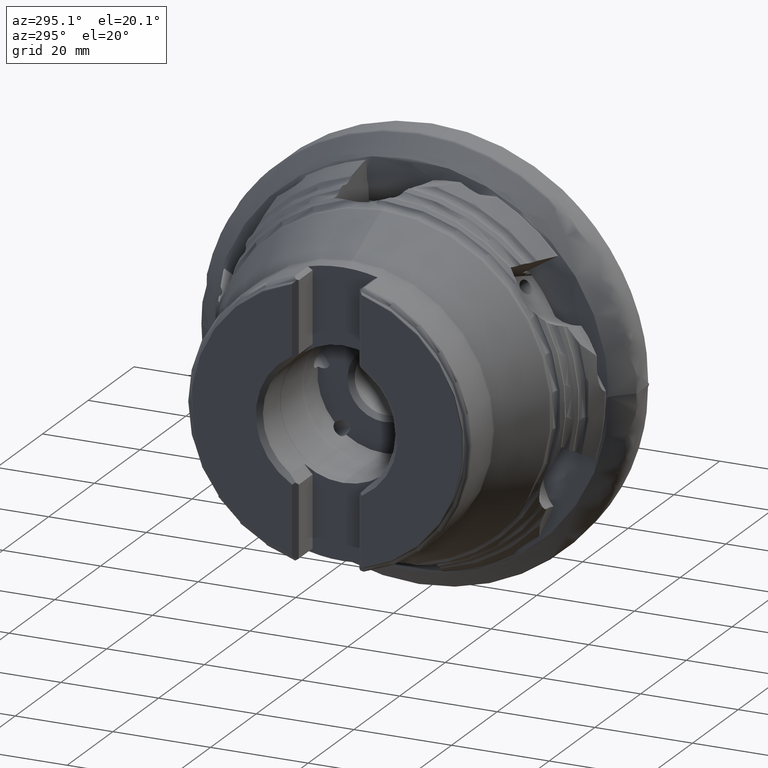
[diagram: clean part render]
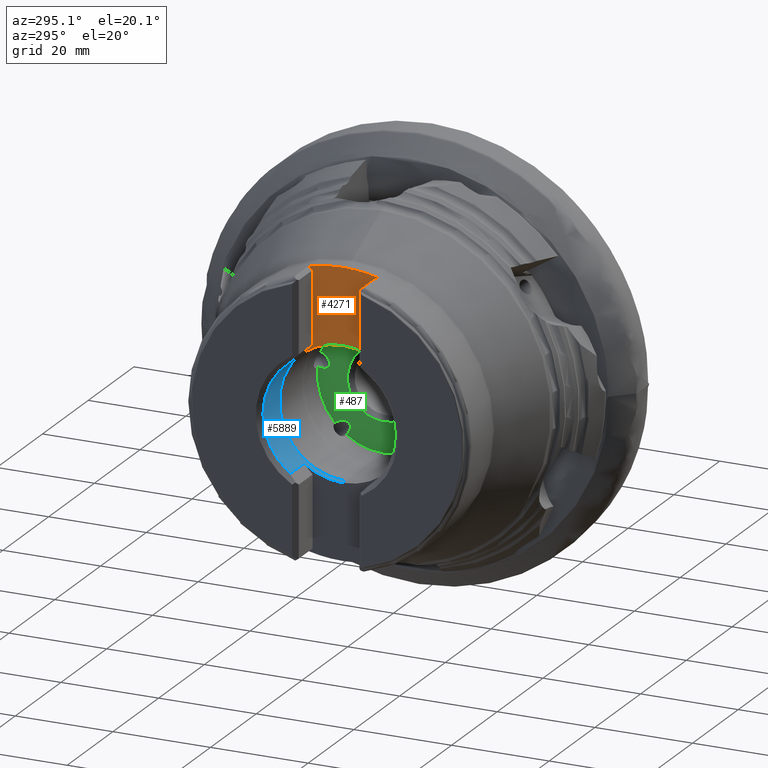
[diagram: same view with three faces highlighted in distinct colors, each labeled with its STEP entity id]
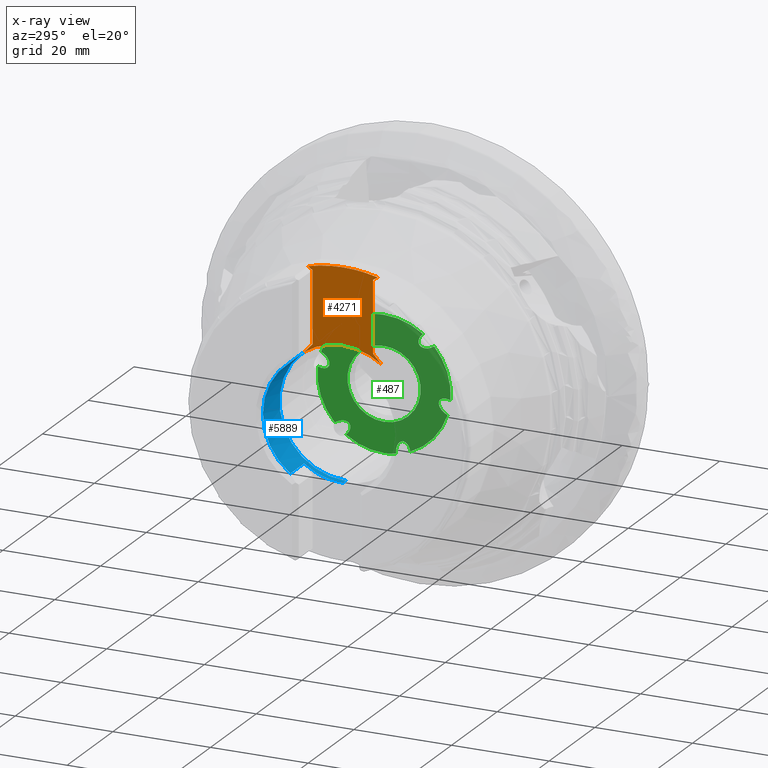
[diagram: x-ray of the same camera — body ghosted, the three highlighted faces saturated]
A machine part, auxiliary view with three faces highlighted in distinct colors.
The next image is the same camera in x-ray (body ghosted, the three faces saturated) — at least one of them is partly hidden behind the body in this view.
Their STEP definitions:

[orange] entity #4271 — the highlighted planar face has unit normal (1, 0, 0).
#84 = EDGE_LOOP ( 'NONE', ( #4089, #8504, #4927, #7433, #7817, #8370, #4221, #6558, #6482, #9602 ) ) ;
#178 = VERTEX_POINT ( 'NONE', #295 ) ;
#234 = CARTESIAN_POINT ( 'NONE',  ( -42.10399999999997800, -40.36027029804522900, -2.350228616249033600 ) ) ;
#295 = CARTESIAN_POINT ( 'NONE',  ( -42.10399999999997800, -6.200000000000003700, 12.87078501993768700 ) ) ;
#298 = FACE_OUTER_BOUND ( 'NONE', #84, .T. ) ;
#473 = LINE ( 'NONE', #7339, #3367 ) ;
#575 = EDGE_CURVE ( 'NONE', #178, #7836, #1746, .T. ) ;
#695 = AXIS2_PLACEMENT_3D ( 'NONE', #10191, #7041, #8636 ) ;
#716 = CARTESIAN_POINT ( 'NONE',  ( -42.10399999999997800, -6.200000000000003700, 27.48962812295473100 ) ) ;
#779 = LINE ( 'NONE', #9442, #2661 ) ;
#899 = VERTEX_POINT ( 'NONE', #8740 ) ;
#939 = VERTEX_POINT ( 'NONE', #2297 ) ;
#994 = LINE ( 'NONE', #234, #9202 ) ;
#1006 = CARTESIAN_POINT ( 'NONE',  ( -42.10399999999997800, 0.0000000000000000000, 0.0000000000000000000 ) ) ;
#1055 = CARTESIAN_POINT ( 'NONE',  ( -42.10399999999997800, 7.956204235286507200, 10.99906537694948300 ) ) ;
#1134 = DIRECTION ( 'NONE',  ( -1.000000000000000000, -0.0000000000000000000, -0.0000000000000000000 ) ) ;
#1240 = EDGE_CURVE ( 'NONE', #899, #2574, #994, .T. ) ;
#1278 = EDGE_CURVE ( 'NONE', #1807, #6583, #9572, .T. ) ;
#1745 = VERTEX_POINT ( 'NONE', #5588 ) ;
#1746 = LINE ( 'NONE', #5830, #5987 ) ;
#1796 = CARTESIAN_POINT ( 'NONE',  ( -42.10399999999997800, -7.956204235286496600, 10.99906537694949200 ) ) ;
#1807 = VERTEX_POINT ( 'NONE', #1796 ) ;
#1859 = VERTEX_POINT ( 'NONE', #1055 ) ;
#1876 = DIRECTION ( 'NONE',  ( 0.0000000000000000000, 0.0000000000000000000, -1.000000000000000000 ) ) ;
#2297 = CARTESIAN_POINT ( 'NONE',  ( -42.10399999999997800, 6.199999999999994000, 12.87078501993769900 ) ) ;
#2532 = LINE ( 'NONE', #9220, #8268 ) ;
#2574 = VERTEX_POINT ( 'NONE', #9864 ) ;
#2661 = VECTOR ( 'NONE', #6241, 1000.000000000000000 ) ;
#2841 = EDGE_CURVE ( 'NONE', #939, #1859, #779, .T. ) ;
#2990 = AXIS2_PLACEMENT_3D ( 'NONE', #4185, #8959, #9727 ) ;
#3367 = VECTOR ( 'NONE', #8339, 1000.000000000000000 ) ;
#3447 = AXIS2_PLACEMENT_3D ( 'NONE', #4599, #7659, #8498 ) ;
#3911 = DIRECTION ( 'NONE',  ( -1.000000000000000000, -0.0000000000000000000, -0.0000000000000000000 ) ) ;
#3972 = DIRECTION ( 'NONE',  ( 0.0000000000000000000, 0.0000000000000000000, -1.000000000000000000 ) ) ;
#4089 = ORIENTED_EDGE ( 'NONE', *, *, #6974, .T. ) ;
#4185 = CARTESIAN_POINT ( 'NONE',  ( -42.10399999999997800, 6.199999999999994000, -75.00000000000000000 ) ) ;
#4221 = ORIENTED_EDGE ( 'NONE', *, *, #1278, .F. ) ;
#4271 = ADVANCED_FACE ( 'NONE', ( #298 ), #6614, .F. ) ;
#4599 = CARTESIAN_POINT ( 'NONE',  ( -42.10399999999997800, 0.0000000000000000000, 0.0000000000000000000 ) ) ;
#4655 = CARTESIAN_POINT ( 'NONE',  ( -42.10399999999997800, 0.0000000000000000000, 0.0000000000000000000 ) ) ;
#4834 = EDGE_CURVE ( 'NONE', #7836, #1745, #2532, .T. ) ;
#4927 = ORIENTED_EDGE ( 'NONE', *, *, #1240, .T. ) ;
#4956 = EDGE_CURVE ( 'NONE', #5078, #899, #8382, .T. ) ;
#4959 = CARTESIAN_POINT ( 'NONE',  ( -42.10399999999997800, -44.24082105716617300, -27.67219430870600800 ) ) ;
#5078 = VERTEX_POINT ( 'NONE', #6384 ) ;
#5177 = AXIS2_PLACEMENT_3D ( 'NONE', #4655, #3911, #3972 ) ;
#5588 = CARTESIAN_POINT ( 'NONE',  ( -42.10399999999997800, -7.157023391835934900, 28.10297166081753100 ) ) ;
#5830 = CARTESIAN_POINT ( 'NONE',  ( -42.10399999999997800, -6.200000000000003700, -75.00000000000000000 ) ) ;
#5987 = VECTOR ( 'NONE', #8161, 1000.000000000000000 ) ;
#6241 = DIRECTION ( 'NONE',  ( 0.0000000000000000000, 0.6842452857409364600, -0.7292519379071298300 ) ) ;
#6243 = CIRCLE ( 'NONE', #695, 13.57499999999999400 ) ;
#6384 = CARTESIAN_POINT ( 'NONE',  ( -42.10399999999997800, 3.551475717527324000E-015, 28.99999999999999600 ) ) ;
#6482 = ORIENTED_EDGE ( 'NONE', *, *, #575, .T. ) ;
#6558 = ORIENTED_EDGE ( 'NONE', *, *, #9048, .T. ) ;
#6583 = VERTEX_POINT ( 'NONE', #10068 ) ;
#6614 = PLANE ( 'NONE',  #2990 ) ;
#6974 = EDGE_CURVE ( 'NONE', #1745, #5078, #9729, .T. ) ;
#7041 = DIRECTION ( 'NONE',  ( -1.000000000000000000, -0.0000000000000000000, -0.0000000000000000000 ) ) ;
#7283 = DIRECTION ( 'NONE',  ( -0.0000000000000000000, 0.6842452857409375700, 0.7292519379071286100 ) ) ;
#7339 = CARTESIAN_POINT ( 'NONE',  ( -42.10399999999997800, 6.199999999999994000, -75.00000000000000000 ) ) ;
#7433 = ORIENTED_EDGE ( 'NONE', *, *, #9865, .F. ) ;
#7650 = DIRECTION ( 'NONE',  ( -0.0000000000000000000, -0.8419322925598232700, 0.5395831861214359600 ) ) ;
#7659 = DIRECTION ( 'NONE',  ( -1.000000000000000000, -0.0000000000000000000, -0.0000000000000000000 ) ) ;
#7817 = ORIENTED_EDGE ( 'NONE', *, *, #2841, .T. ) ;
#7836 = VERTEX_POINT ( 'NONE', #716 ) ;
#7966 = VECTOR ( 'NONE', #7283, 1000.000000000000100 ) ;
#8161 = DIRECTION ( 'NONE',  ( -0.0000000000000000000, -0.0000000000000000000, 1.000000000000000000 ) ) ;
#8268 = VECTOR ( 'NONE', #7650, 999.9999999999998900 ) ;
#8339 = DIRECTION ( 'NONE',  ( -0.0000000000000000000, -0.0000000000000000000, 1.000000000000000000 ) ) ;
#8370 = ORIENTED_EDGE ( 'NONE', *, *, #8401, .F. ) ;
#8382 = CIRCLE ( 'NONE', #5177, 28.99999999999999600 ) ;
#8401 = EDGE_CURVE ( 'NONE', #6583, #1859, #6243, .T. ) ;
#8498 = DIRECTION ( 'NONE',  ( 0.0000000000000000000, 5.329070518200752200E-015, -1.000000000000000000 ) ) ;
#8504 = ORIENTED_EDGE ( 'NONE', *, *, #4956, .T. ) ;
#8636 = DIRECTION ( 'NONE',  ( 0.0000000000000000000, 0.0000000000000000000, -1.000000000000000000 ) ) ;
#8740 = CARTESIAN_POINT ( 'NONE',  ( -42.10399999999997800, 7.157023391835952700, 28.10297166081752400 ) ) ;
#8959 = DIRECTION ( 'NONE',  ( 1.000000000000000000, 0.0000000000000000000, 0.0000000000000000000 ) ) ;
#8964 = DIRECTION ( 'NONE',  ( 0.0000000000000000000, -0.8419322925598232700, -0.5395831861214359600 ) ) ;
#9048 = EDGE_CURVE ( 'NONE', #1807, #178, #9455, .T. ) ;
#9202 = VECTOR ( 'NONE', #8964, 1000.000000000000000 ) ;
#9220 = CARTESIAN_POINT ( 'NONE',  ( -42.10399999999997800, 49.15001011520772800, -7.983455726831651100 ) ) ;
#9343 = AXIS2_PLACEMENT_3D ( 'NONE', #1006, #1134, #1876 ) ;
#9442 = CARTESIAN_POINT ( 'NONE',  ( -42.10399999999997800, 50.04639703429401700, -33.85963559652304900 ) ) ;
#9455 = LINE ( 'NONE', #4959, #7966 ) ;
#9572 = CIRCLE ( 'NONE', #9343, 13.57499999999999400 ) ;
#9602 = ORIENTED_EDGE ( 'NONE', *, *, #4834, .T. ) ;
#9727 = DIRECTION ( 'NONE',  ( 0.0000000000000000000, 0.0000000000000000000, -1.000000000000000000 ) ) ;
#9729 = CIRCLE ( 'NONE', #3447, 28.99999999999999600 ) ;
#9864 = CARTESIAN_POINT ( 'NONE',  ( -42.10399999999997800, 6.199999999999994000, 27.48962812295470600 ) ) ;
#9865 = EDGE_CURVE ( 'NONE', #939, #2574, #473, .T. ) ;
#10068 = CARTESIAN_POINT ( 'NONE',  ( -42.10399999999997800, 1.662458029842531100E-015, 13.57499999999999400 ) ) ;
#10191 = CARTESIAN_POINT ( 'NONE',  ( -42.10399999999997800, 0.0000000000000000000, 0.0000000000000000000 ) ) ;

[blue] entity #5889 — the highlighted cylindrical surface (partial cylindrical patch) has radius 13.575 mm, axis along (1, -0, -0).
#23 = AXIS2_PLACEMENT_3D ( 'NONE', #7435, #9809, #1917 ) ;
#251 = LINE ( 'NONE', #9643, #9331 ) ;
#306 = DIRECTION ( 'NONE',  ( 1.000000000000000000, -0.0000000000000000000, -0.0000000000000000000 ) ) ;
#311 = ORIENTED_EDGE ( 'NONE', *, *, #4662, .F. ) ;
#495 = EDGE_LOOP ( 'NONE', ( #311, #10109, #7279, #1343, #3578, #3525, #1643, #9600 ) ) ;
#584 = DIRECTION ( 'NONE',  ( 0.0000000000000000000, 0.0000000000000000000, -1.000000000000000000 ) ) ;
#695 = AXIS2_PLACEMENT_3D ( 'NONE', #10191, #7041, #8636 ) ;
#1055 = CARTESIAN_POINT ( 'NONE',  ( -42.10399999999997800, 7.956204235286507200, 10.99906537694948300 ) ) ;
#1343 = ORIENTED_EDGE ( 'NONE', *, *, #7898, .F. ) ;
#1643 = ORIENTED_EDGE ( 'NONE', *, *, #5144, .T. ) ;
#1757 = DIRECTION ( 'NONE',  ( -1.000000000000000000, 0.0000000000000000000, 0.0000000000000000000 ) ) ;
#1859 = VERTEX_POINT ( 'NONE', #1055 ) ;
#1917 = DIRECTION ( 'NONE',  ( 0.0000000000000000000, 0.0000000000000000000, -1.000000000000000000 ) ) ;
#1941 = VERTEX_POINT ( 'NONE', #8384 ) ;
#2014 = VERTEX_POINT ( 'NONE', #4494 ) ;
#2160 = CIRCLE ( 'NONE', #7240, 13.57499999999999600 ) ;
#2270 = VECTOR ( 'NONE', #306, 1000.000000000000000 ) ;
#2491 = CARTESIAN_POINT ( 'NONE',  ( -48.10399999999999900, 0.0000000000000000000, 0.0000000000000000000 ) ) ;
#2559 = DIRECTION ( 'NONE',  ( 1.000000000000000000, -0.0000000000000000000, -0.0000000000000000000 ) ) ;
#2658 = DIRECTION ( 'NONE',  ( 1.000000000000000000, -0.0000000000000000000, -0.0000000000000000000 ) ) ;
#2737 = CARTESIAN_POINT ( 'NONE',  ( -42.10399999999997800, 7.956204235286507200, -10.99906537694948300 ) ) ;
#2780 = LINE ( 'NONE', #3234, #5771 ) ;
#3234 = CARTESIAN_POINT ( 'NONE',  ( 0.0000000000000000000, 7.956204235286507200, -10.99906537694948300 ) ) ;
#3289 = CYLINDRICAL_SURFACE ( 'NONE', #23, 13.57499999999999400 ) ;
#3475 = EDGE_CURVE ( 'NONE', #5726, #8058, #2780, .T. ) ;
#3525 = ORIENTED_EDGE ( 'NONE', *, *, #10047, .T. ) ;
#3540 = LINE ( 'NONE', #4255, #2270 ) ;
#3578 = ORIENTED_EDGE ( 'NONE', *, *, #3475, .T. ) ;
#4245 = CARTESIAN_POINT ( 'NONE',  ( -40.85399999999999900, 1.662458029842531500E-015, 13.57499999999999800 ) ) ;
#4255 = CARTESIAN_POINT ( 'NONE',  ( 0.0000000000000000000, 0.0000000000000000000, -13.57499999999999400 ) ) ;
#4292 = LINE ( 'NONE', #9849, #7881 ) ;
#4374 = CIRCLE ( 'NONE', #6061, 13.57499999999999400 ) ;
#4494 = CARTESIAN_POINT ( 'NONE',  ( -48.10399999999999900, 7.956204235286510800, 10.99906537694948300 ) ) ;
#4509 = VERTEX_POINT ( 'NONE', #4671 ) ;
#4662 = EDGE_CURVE ( 'NONE', #6583, #7949, #4292, .T. ) ;
#4671 = CARTESIAN_POINT ( 'NONE',  ( -42.10399999999997800, 0.0000000000000000000, -13.57499999999999400 ) ) ;
#4709 = DIRECTION ( 'NONE',  ( 1.000000000000000000, -0.0000000000000000000, -0.0000000000000000000 ) ) ;
#4875 = EDGE_CURVE ( 'NONE', #1941, #7949, #2160, .T. ) ;
#5144 = EDGE_CURVE ( 'NONE', #4509, #1941, #3540, .T. ) ;
#5223 = CIRCLE ( 'NONE', #5964, 13.57499999999999400 ) ;
#5306 = CARTESIAN_POINT ( 'NONE',  ( -40.85399999999999900, 0.0000000000000000000, 0.0000000000000000000 ) ) ;
#5334 = DIRECTION ( 'NONE',  ( 1.000000000000000000, -0.0000000000000000000, -0.0000000000000000000 ) ) ;
#5358 = DIRECTION ( 'NONE',  ( -1.000000000000000000, -0.0000000000000000000, -0.0000000000000000000 ) ) ;
#5615 = CARTESIAN_POINT ( 'NONE',  ( -48.10399999999999900, 7.956204235286510800, -10.99906537694948300 ) ) ;
#5726 = VERTEX_POINT ( 'NONE', #5615 ) ;
#5771 = VECTOR ( 'NONE', #4709, 1000.000000000000000 ) ;
#5889 = ADVANCED_FACE ( 'NONE', ( #9614 ), #3289, .F. ) ;
#5964 = AXIS2_PLACEMENT_3D ( 'NONE', #8508, #5358, #6102 ) ;
#6061 = AXIS2_PLACEMENT_3D ( 'NONE', #2491, #2559, #7299 ) ;
#6102 = DIRECTION ( 'NONE',  ( 0.0000000000000000000, 0.0000000000000000000, -1.000000000000000000 ) ) ;
#6243 = CIRCLE ( 'NONE', #695, 13.57499999999999400 ) ;
#6583 = VERTEX_POINT ( 'NONE', #10068 ) ;
#7041 = DIRECTION ( 'NONE',  ( -1.000000000000000000, -0.0000000000000000000, -0.0000000000000000000 ) ) ;
#7240 = AXIS2_PLACEMENT_3D ( 'NONE', #5306, #5334, #584 ) ;
#7279 = ORIENTED_EDGE ( 'NONE', *, *, #9028, .T. ) ;
#7299 = DIRECTION ( 'NONE',  ( 0.0000000000000000000, 0.0000000000000000000, -1.000000000000000000 ) ) ;
#7435 = CARTESIAN_POINT ( 'NONE',  ( 0.0000000000000000000, 0.0000000000000000000, 0.0000000000000000000 ) ) ;
#7881 = VECTOR ( 'NONE', #2658, 1000.000000000000000 ) ;
#7898 = EDGE_CURVE ( 'NONE', #5726, #2014, #4374, .T. ) ;
#7949 = VERTEX_POINT ( 'NONE', #4245 ) ;
#8058 = VERTEX_POINT ( 'NONE', #2737 ) ;
#8384 = CARTESIAN_POINT ( 'NONE',  ( -40.85399999999999900, 0.0000000000000000000, -13.57499999999999600 ) ) ;
#8401 = EDGE_CURVE ( 'NONE', #6583, #1859, #6243, .T. ) ;
#8508 = CARTESIAN_POINT ( 'NONE',  ( -42.10399999999997800, 0.0000000000000000000, 0.0000000000000000000 ) ) ;
#8636 = DIRECTION ( 'NONE',  ( 0.0000000000000000000, 0.0000000000000000000, -1.000000000000000000 ) ) ;
#9028 = EDGE_CURVE ( 'NONE', #1859, #2014, #251, .T. ) ;
#9331 = VECTOR ( 'NONE', #1757, 1000.000000000000000 ) ;
#9600 = ORIENTED_EDGE ( 'NONE', *, *, #4875, .T. ) ;
#9614 = FACE_OUTER_BOUND ( 'NONE', #495, .T. ) ;
#9643 = CARTESIAN_POINT ( 'NONE',  ( 0.0000000000000000000, 7.956204235286507200, 10.99906537694948300 ) ) ;
#9809 = DIRECTION ( 'NONE',  ( 1.000000000000000000, -0.0000000000000000000, -0.0000000000000000000 ) ) ;
#9849 = CARTESIAN_POINT ( 'NONE',  ( 0.0000000000000000000, 1.662458029842531100E-015, 13.57499999999999400 ) ) ;
#10047 = EDGE_CURVE ( 'NONE', #8058, #4509, #5223, .T. ) ;
#10068 = CARTESIAN_POINT ( 'NONE',  ( -42.10399999999997800, 1.662458029842531100E-015, 13.57499999999999400 ) ) ;
#10109 = ORIENTED_EDGE ( 'NONE', *, *, #8401, .T. ) ;
#10191 = CARTESIAN_POINT ( 'NONE',  ( -42.10399999999997800, 0.0000000000000000000, 0.0000000000000000000 ) ) ;

[green] entity #487 — the highlighted planar face has unit normal (1, 0, -0).
#1 = EDGE_LOOP ( 'NONE', ( #3028, #1092, #4732, #7751, #6745, #8785, #4493, #6380, #9123, #626, #4931, #5373, #2582, #2520, #8291, #8324, #750, #1772, #8228, #734 ) ) ;
#129 = PLANE ( 'NONE',  #5501 ) ;
#239 = CIRCLE ( 'NONE', #6101, 7.499999999999992000 ) ;
#266 = VERTEX_POINT ( 'NONE', #9193 ) ;
#278 = CIRCLE ( 'NONE', #7953, 13.64999999999999900 ) ;
#324 = CARTESIAN_POINT ( 'NONE',  ( -24.10399999999999900, -13.60216233544888100, -1.141787983863743900 ) ) ;
#368 = CARTESIAN_POINT ( 'NONE',  ( -24.10399999999999900, 0.0000000000000000000, 0.0000000000000000000 ) ) ;
#480 =( BOUNDED_CURVE ( )  B_SPLINE_CURVE ( 3, ( #6475, #5598, #5637, #1672 ),
 .UNSPECIFIED., .F., .F. ) 
 B_SPLINE_CURVE_WITH_KNOTS ( ( 4, 4 ),
 ( 1.417982092244132600, 2.812262830836688800 ),
 .UNSPECIFIED. ) 
 CURVE ( )  GEOMETRIC_REPRESENTATION_ITEM ( )  RATIONAL_B_SPLINE_CURVE ( ( 1.000000000000000000, 0.8444541881402121100, 0.8444541881402121100, 1.000000000000000000 ) ) 
 REPRESENTATION_ITEM ( '' )  );
#481 = CARTESIAN_POINT ( 'NONE',  ( -24.10399999999999900, -10.25897577499131700, 9.004216570481904800 ) ) ;
#487 = ADVANCED_FACE ( 'NONE', ( #4992, #876 ), #129, .F. ) ;
#519 = EDGE_CURVE ( 'NONE', #3093, #8397, #7224, .T. ) ;
#579 = CARTESIAN_POINT ( 'NONE',  ( -24.10399999999999900, 10.10026803605284800, -9.181888999540834800 ) ) ;
#598 = EDGE_CURVE ( 'NONE', #9731, #4681, #9894, .T. ) ;
#626 = ORIENTED_EDGE ( 'NONE', *, *, #8077, .T. ) ;
#726 = EDGE_CURVE ( 'NONE', #3131, #6177, #2500, .T. ) ;
#732 = CARTESIAN_POINT ( 'NONE',  ( -24.10399999999999900, 0.0000000000000000000, 0.0000000000000000000 ) ) ;
#734 = ORIENTED_EDGE ( 'NONE', *, *, #10192, .T. ) ;
#750 = ORIENTED_EDGE ( 'NONE', *, *, #2879, .T. ) ;
#876 = FACE_BOUND ( 'NONE', #8176, .T. ) ;
#991 = CARTESIAN_POINT ( 'NONE',  ( -24.10399999999999900, -13.00188314635763300, -4.156144204483425100 ) ) ;
#995 = CARTESIAN_POINT ( 'NONE',  ( -24.10399999999999900, 6.880747922539177000, -9.577514490748388500 ) ) ;
#1064 = VERTEX_POINT ( 'NONE', #8196 ) ;
#1092 = ORIENTED_EDGE ( 'NONE', *, *, #7708, .T. ) ;
#1118 = CARTESIAN_POINT ( 'NONE',  ( -24.10399999999999600, -2.283794969497794800, -11.91032887079682800 ) ) ;
#1239 = DIRECTION ( 'NONE',  ( 1.000000000000000000, -0.0000000000000000000, -0.0000000000000000000 ) ) ;
#1293 = CARTESIAN_POINT ( 'NONE',  ( -24.10399999999999900, -8.651283427815688000, 7.807895116188567500 ) ) ;
#1311 = CARTESIAN_POINT ( 'NONE',  ( -24.10399999999999900, 1.671642880836136900E-015, 13.64999999999999900 ) ) ;
#1363 = VERTEX_POINT ( 'NONE', #9095 ) ;
#1418 = EDGE_CURVE ( 'NONE', #6177, #8660, #7921, .T. ) ;
#1427 = VERTEX_POINT ( 'NONE', #1311 ) ;
#1672 = CARTESIAN_POINT ( 'NONE',  ( -24.10399999999999900, -11.20679278877424800, -2.072044995719736000 ) ) ;
#1675 = CARTESIAN_POINT ( 'NONE',  ( -24.10399999999999900, 0.0000000000000000000, 0.0000000000000000000 ) ) ;
#1728 = CARTESIAN_POINT ( 'NONE',  ( -24.10399999999999900, 3.133953956819699900, 13.28536159073338000 ) ) ;
#1772 = ORIENTED_EDGE ( 'NONE', *, *, #4789, .F. ) ;
#1800 = CARTESIAN_POINT ( 'NONE',  ( -24.10399999999999900, -5.377689456982778900, -12.54603348091563600 ) ) ;
#1861 = CARTESIAN_POINT ( 'NONE',  ( -24.10399999999999900, -3.916876792526077500, -10.74236838138516600 ) ) ;
#2000 = CARTESIAN_POINT ( 'NONE',  ( -24.10399999999999900, 0.0000000000000000000, 7.499999999999992000 ) ) ;
#2010 = CARTESIAN_POINT ( 'NONE',  ( -24.10399999999999900, -11.20679278877424800, -2.072044995719736000 ) ) ;
#2015 = EDGE_CURVE ( 'NONE', #266, #6091, #239, .T. ) ;
#2034 = DIRECTION ( 'NONE',  ( 0.0000000000000000000, 0.0000000000000000000, -1.000000000000000000 ) ) ;
#2078 = AXIS2_PLACEMENT_3D ( 'NONE', #10034, #5296, #4525 ) ;
#2101 = EDGE_CURVE ( 'NONE', #3093, #1427, #9386, .T. ) ;
#2148 = CARTESIAN_POINT ( 'NONE',  ( -24.10399999999999900, 6.880747922539177900, -8.144607347062937200 ) ) ;
#2228 = DIRECTION ( 'NONE',  ( 1.000000000000000000, -0.0000000000000000000, -0.0000000000000000000 ) ) ;
#2239 = DIRECTION ( 'NONE',  ( 1.000000000000000000, -0.0000000000000000000, -0.0000000000000000000 ) ) ;
#2316 = AXIS2_PLACEMENT_3D ( 'NONE', #9541, #3575, #6427 ) ;
#2355 = CIRCLE ( 'NONE', #6252, 7.499999999999992000 ) ;
#2500 =( BOUNDED_CURVE ( )  B_SPLINE_CURVE ( 3, ( #481, #1293, #4465, #6819 ),
 .UNSPECIFIED., .F., .F. ) 
 B_SPLINE_CURVE_WITH_KNOTS ( ( 4, 4 ),
 ( 1.417982092244138000, 3.510168583681379900 ),
 .UNSPECIFIED. ) 
 CURVE ( )  GEOMETRIC_REPRESENTATION_ITEM ( )  RATIONAL_B_SPLINE_CURVE ( ( 1.000000000000000000, 0.6673040343536480500, 0.6673040343536480500, 1.000000000000000000 ) ) 
 REPRESENTATION_ITEM ( '' )  );
#2504 = EDGE_CURVE ( 'NONE', #6692, #8699, #4395, .T. ) ;
#2520 = ORIENTED_EDGE ( 'NONE', *, *, #7399, .F. ) ;
#2582 = ORIENTED_EDGE ( 'NONE', *, *, #1418, .T. ) ;
#2613 = DIRECTION ( 'NONE',  ( 1.000000000000000000, -0.0000000000000000000, -0.0000000000000000000 ) ) ;
#2617 = CARTESIAN_POINT ( 'NONE',  ( -24.10399999999999600, -2.927770626734663900, -10.74236838138517000 ) ) ;
#2640 = AXIS2_PLACEMENT_3D ( 'NONE', #7380, #2613, #3037 ) ;
#2742 = CARTESIAN_POINT ( 'NONE',  ( -24.10399999999999900, -7.984334827966153000, 11.07126448762409000 ) ) ;
#2810 = CARTESIAN_POINT ( 'NONE',  ( -24.10399999999999900, -7.046659287370745900, 9.985655592375426400 ) ) ;
#2879 = EDGE_CURVE ( 'NONE', #8397, #4841, #6451, .T. ) ;
#2948 = VERTEX_POINT ( 'NONE', #7734 ) ;
#2991 = CARTESIAN_POINT ( 'NONE',  ( -24.10399999999999900, 0.0000000000000000000, 0.0000000000000000000 ) ) ;
#3013 = EDGE_CURVE ( 'NONE', #9731, #6267, #4766, .T. ) ;
#3024 = CARTESIAN_POINT ( 'NONE',  ( -24.10399999999999900, 11.16874211822329800, 1.254578575512223200 ) ) ;
#3028 = ORIENTED_EDGE ( 'NONE', *, *, #9641, .F. ) ;
#3037 = DIRECTION ( 'NONE',  ( 0.0000000000000000000, 0.0000000000000000000, -1.000000000000000000 ) ) ;
#3085 = CARTESIAN_POINT ( 'NONE',  ( -24.10399999999999900, 11.16874211822330000, 2.288181702248133200 ) ) ;
#3093 = VERTEX_POINT ( 'NONE', #9633 ) ;
#3131 = VERTEX_POINT ( 'NONE', #8247 ) ;
#3262 = DIRECTION ( 'NONE',  ( 1.000000000000000000, 0.0000000000000000000, -0.0000000000000000000 ) ) ;
#3365 = CARTESIAN_POINT ( 'NONE',  ( -24.10399999999999900, 7.499999999999992000, 0.0000000000000000000 ) ) ;
#3528 = CARTESIAN_POINT ( 'NONE',  ( -24.10399999999999900, 0.0000000000000000000, 0.0000000000000000000 ) ) ;
#3567 = CARTESIAN_POINT ( 'NONE',  ( -24.10399999999999900, -11.20679278877424800, -2.072044995719736000 ) ) ;
#3575 = DIRECTION ( 'NONE',  ( 1.000000000000000000, -0.0000000000000000000, -0.0000000000000000000 ) ) ;
#3791 = CARTESIAN_POINT ( 'NONE',  ( -24.10400000000000300, 11.16874211822329800, 3.098039005759592800 ) ) ;
#3837 = DIRECTION ( 'NONE',  ( 1.000000000000000000, -0.0000000000000000000, -0.0000000000000000000 ) ) ;
#3928 = CIRCLE ( 'NONE', #5447, 13.64999999999999900 ) ;
#3989 = EDGE_CURVE ( 'NONE', #6267, #8699, #3928, .T. ) ;
#4165 = EDGE_CURVE ( 'NONE', #4736, #5327, #7522, .T. ) ;
#4395 =( BOUNDED_CURVE ( )  B_SPLINE_CURVE ( 3, ( #995, #9789, #6607, #8952 ),
 .UNSPECIFIED., .F., .F. ) 
 B_SPLINE_CURVE_WITH_KNOTS ( ( 4, 4 ),
 ( 3.523527761959856600, 4.483306282674339700 ),
 .UNSPECIFIED. ) 
 CURVE ( )  GEOMETRIC_REPRESENTATION_ITEM ( )  RATIONAL_B_SPLINE_CURVE ( ( 1.000000000000000000, 0.9246973697342559800, 0.9246973697342559800, 1.000000000000000000 ) ) 
 REPRESENTATION_ITEM ( '' )  );
#4446 =( BOUNDED_CURVE ( )  B_SPLINE_CURVE ( 3, ( #2010, #5171, #9888, #324 ),
 .UNSPECIFIED., .F., .F. ) 
 B_SPLINE_CURVE_WITH_KNOTS ( ( 4, 4 ),
 ( 2.812262830836688800, 4.483306282674341500 ),
 .UNSPECIFIED. ) 
 CURVE ( )  GEOMETRIC_REPRESENTATION_ITEM ( )  RATIONAL_B_SPLINE_CURVE ( ( 1.000000000000000000, 0.7805272251513978300, 0.7805272251513978300, 1.000000000000000000 ) ) 
 REPRESENTATION_ITEM ( '' )  );
#4465 = CARTESIAN_POINT ( 'NONE',  ( -24.10399999999999900, -7.046659287370745900, 8.022633655747940300 ) ) ;
#4466 = DIRECTION ( 'NONE',  ( 1.000000000000000000, -0.0000000000000000000, -0.0000000000000000000 ) ) ;
#4493 = ORIENTED_EDGE ( 'NONE', *, *, #4605, .T. ) ;
#4525 = DIRECTION ( 'NONE',  ( 0.0000000000000000000, 0.0000000000000000000, -1.000000000000000000 ) ) ;
#4605 = EDGE_CURVE ( 'NONE', #4681, #5327, #9542, .T. ) ;
#4608 = CARTESIAN_POINT ( 'NONE',  ( -24.10399999999999900, 6.026928179761180900, 12.24739305795319800 ) ) ;
#4681 = VERTEX_POINT ( 'NONE', #7442 ) ;
#4697 = CARTESIAN_POINT ( 'NONE',  ( -24.10399999999999900, 4.524222958018939700, 10.52133093755546000 ) ) ;
#4732 = ORIENTED_EDGE ( 'NONE', *, *, #2504, .T. ) ;
#4736 = VERTEX_POINT ( 'NONE', #991 ) ;
#4766 = CIRCLE ( 'NONE', #2316, 13.64999999999999900 ) ;
#4789 = EDGE_CURVE ( 'NONE', #1363, #4841, #5662, .T. ) ;
#4841 = VERTEX_POINT ( 'NONE', #6080 ) ;
#4929 = CARTESIAN_POINT ( 'NONE',  ( -24.10400000000000600, -4.643514205548337200, -10.74236838138517100 ) ) ;
#4931 = ORIENTED_EDGE ( 'NONE', *, *, #6352, .F. ) ;
#4992 = FACE_OUTER_BOUND ( 'NONE', #1, .T. ) ;
#4998 = CARTESIAN_POINT ( 'NONE',  ( -24.10400000000000600, -5.212681522257756900, -11.44511915150121000 ) ) ;
#5074 = DIRECTION ( 'NONE',  ( 0.0000000000000000000, 0.0000000000000000000, -1.000000000000000000 ) ) ;
#5171 = CARTESIAN_POINT ( 'NONE',  ( -24.10399999999999900, -11.20679278877425000, -1.053725224303058100 ) ) ;
#5296 = DIRECTION ( 'NONE',  ( 1.000000000000000000, -0.0000000000000000000, -0.0000000000000000000 ) ) ;
#5327 = VERTEX_POINT ( 'NONE', #9278 ) ;
#5373 = ORIENTED_EDGE ( 'NONE', *, *, #726, .T. ) ;
#5388 = ORIENTED_EDGE ( 'NONE', *, *, #2015, .T. ) ;
#5432 = DIRECTION ( 'NONE',  ( 0.0000000000000000000, 0.0000000000000000000, -1.000000000000000000 ) ) ;
#5447 = AXIS2_PLACEMENT_3D ( 'NONE', #2991, #2239, #5432 ) ;
#5468 =( BOUNDED_CURVE ( )  B_SPLINE_CURVE ( 3, ( #10052, #7698, #3791, #7661 ),
 .UNSPECIFIED., .F., .F. ) 
 B_SPLINE_CURVE_WITH_KNOTS ( ( 4, 4 ),
 ( 1.417982092244131700, 2.799313770592776000 ),
 .UNSPECIFIED. ) 
 CURVE ( )  GEOMETRIC_REPRESENTATION_ITEM ( )  RATIONAL_B_SPLINE_CURVE ( ( 1.000000000000000000, 0.8472146751158622400, 0.8472146751158622400, 1.000000000000000000 ) ) 
 REPRESENTATION_ITEM ( '' )  );
#5501 = AXIS2_PLACEMENT_3D ( 'NONE', #3365, #3262, #8914 ) ;
#5530 = VERTEX_POINT ( 'NONE', #3567 ) ;
#5598 = CARTESIAN_POINT ( 'NONE',  ( -24.10399999999999600, -11.91537291180686400, -3.709510020106835600 ) ) ;
#5637 = CARTESIAN_POINT ( 'NONE',  ( -24.10399999999999600, -11.20679278877425000, -2.886848772153855200 ) ) ;
#5662 = CIRCLE ( 'NONE', #6329, 13.64999999999999900 ) ;
#6033 = CARTESIAN_POINT ( 'NONE',  ( -24.10399999999999900, 10.10026803605284800, -9.181888999540834800 ) ) ;
#6080 = CARTESIAN_POINT ( 'NONE',  ( -24.10399999999999900, 6.026928179761180900, 12.24739305795319800 ) ) ;
#6086 = ORIENTED_EDGE ( 'NONE', *, *, #8399, .T. ) ;
#6091 = VERTEX_POINT ( 'NONE', #2000 ) ;
#6101 = AXIS2_PLACEMENT_3D ( 'NONE', #10137, #3837, #7055 ) ;
#6177 = VERTEX_POINT ( 'NONE', #6421 ) ;
#6252 = AXIS2_PLACEMENT_3D ( 'NONE', #732, #2228, #8698 ) ;
#6267 = VERTEX_POINT ( 'NONE', #6561 ) ;
#6269 = CARTESIAN_POINT ( 'NONE',  ( -24.10399999999999900, 5.230217803802934100, 10.52133093755546200 ) ) ;
#6329 = AXIS2_PLACEMENT_3D ( 'NONE', #3528, #4466, #2034 ) ;
#6335 = CARTESIAN_POINT ( 'NONE',  ( -24.10399999999999900, 5.811020700048152900, 11.18846236434586000 ) ) ;
#6352 = EDGE_CURVE ( 'NONE', #3131, #2948, #278, .T. ) ;
#6380 = ORIENTED_EDGE ( 'NONE', *, *, #4165, .F. ) ;
#6421 = CARTESIAN_POINT ( 'NONE',  ( -24.10399999999999900, -7.046659287370740500, 9.434104251819519500 ) ) ;
#6427 = DIRECTION ( 'NONE',  ( 0.0000000000000000000, 0.0000000000000000000, -1.000000000000000000 ) ) ;
#6451 =( BOUNDED_CURVE ( )  B_SPLINE_CURVE ( 3, ( #9446, #6269, #6335, #4608 ),
 .UNSPECIFIED., .F., .F. ) 
 B_SPLINE_CURVE_WITH_KNOTS ( ( 4, 4 ),
 ( 3.175266990526802900, 4.483306282674333500 ),
 .UNSPECIFIED. ) 
 CURVE ( )  GEOMETRIC_REPRESENTATION_ITEM ( )  RATIONAL_B_SPLINE_CURVE ( ( 1.000000000000000000, 0.8624298257101326000, 0.8624298257101326000, 1.000000000000000000 ) ) 
 REPRESENTATION_ITEM ( '' )  );
#6475 = CARTESIAN_POINT ( 'NONE',  ( -24.10399999999999900, -13.00188314635763300, -4.156144204483425100 ) ) ;
#6546 = VERTEX_POINT ( 'NONE', #6033 ) ;
#6561 = CARTESIAN_POINT ( 'NONE',  ( -24.10399999999999900, 0.0000000000000000000, -13.64999999999999900 ) ) ;
#6587 = VERTEX_POINT ( 'NONE', #9390 ) ;
#6607 = CARTESIAN_POINT ( 'NONE',  ( -24.10399999999999900, 7.208476998993059900, -10.71191854089192800 ) ) ;
#6692 = VERTEX_POINT ( 'NONE', #8781 ) ;
#6725 = EDGE_CURVE ( 'NONE', #4736, #5530, #480, .T. ) ;
#6745 = ORIENTED_EDGE ( 'NONE', *, *, #3013, .F. ) ;
#6750 = AXIS2_PLACEMENT_3D ( 'NONE', #6841, #1239, #7635 ) ;
#6819 = CARTESIAN_POINT ( 'NONE',  ( -24.10399999999999900, -7.046659287370740500, 9.434104251819519500 ) ) ;
#6839 = CARTESIAN_POINT ( 'NONE',  ( -24.10399999999999900, -7.046659287370740500, 9.434104251819519500 ) ) ;
#6841 = CARTESIAN_POINT ( 'NONE',  ( -24.10399999999999900, 0.0000000000000000000, 0.0000000000000000000 ) ) ;
#6994 = CIRCLE ( 'NONE', #2640, 13.64999999999999900 ) ;
#7020 = CARTESIAN_POINT ( 'NONE',  ( -24.10399999999999900, 13.58016371228205300, 1.379004549527503000 ) ) ;
#7051 =( BOUNDED_CURVE ( )  B_SPLINE_CURVE ( 3, ( #579, #8612, #2148, #7715 ),
 .UNSPECIFIED., .F., .F. ) 
 B_SPLINE_CURVE_WITH_KNOTS ( ( 4, 4 ),
 ( 1.417982092244136000, 3.523527761959856600 ),
 .UNSPECIFIED. ) 
 CURVE ( )  GEOMETRIC_REPRESENTATION_ITEM ( )  RATIONAL_B_SPLINE_CURVE ( ( 1.000000000000000000, 0.6634426112019947700, 0.6634426112019947700, 1.000000000000000000 ) ) 
 REPRESENTATION_ITEM ( '' )  );
#7055 = DIRECTION ( 'NONE',  ( 0.0000000000000000000, 0.0000000000000000000, -1.000000000000000000 ) ) ;
#7115 = DIRECTION ( 'NONE',  ( 1.000000000000000000, -0.0000000000000000000, -0.0000000000000000000 ) ) ;
#7224 =( BOUNDED_CURVE ( )  B_SPLINE_CURVE ( 3, ( #1728, #8022, #9431, #7250 ),
 .UNSPECIFIED., .F., .F. ) 
 B_SPLINE_CURVE_WITH_KNOTS ( ( 4, 4 ),
 ( 1.417982092244140600, 3.175266990526802900 ),
 .UNSPECIFIED. ) 
 CURVE ( )  GEOMETRIC_REPRESENTATION_ITEM ( )  RATIONAL_B_SPLINE_CURVE ( ( 1.000000000000000000, 0.7587979159913996700, 0.7587979159913996700, 1.000000000000000000 ) ) 
 REPRESENTATION_ITEM ( '' )  );
#7250 = CARTESIAN_POINT ( 'NONE',  ( -24.10399999999999900, 4.524222958018939700, 10.52133093755546000 ) ) ;
#7380 = CARTESIAN_POINT ( 'NONE',  ( -24.10399999999999900, 0.0000000000000000000, 0.0000000000000000000 ) ) ;
#7399 = EDGE_CURVE ( 'NONE', #1427, #8660, #6994, .T. ) ;
#7442 = CARTESIAN_POINT ( 'NONE',  ( -24.10399999999999900, -3.916876792526077500, -10.74236838138516600 ) ) ;
#7522 = CIRCLE ( 'NONE', #10220, 13.64999999999999900 ) ;
#7532 = CARTESIAN_POINT ( 'NONE',  ( -24.10399999999999900, -7.385428988609810100, 10.57713981047899300 ) ) ;
#7556 =( BOUNDED_CURVE ( )  B_SPLINE_CURVE ( 3, ( #3085, #3024, #8579, #7020 ),
 .UNSPECIFIED., .F., .T. ) 
 B_SPLINE_CURVE_WITH_KNOTS ( ( 4, 4 ),
 ( 2.799313770592776000, 4.483306282674341500 ),
 .UNSPECIFIED. ) 
 CURVE ( )  GEOMETRIC_REPRESENTATION_ITEM ( )  RATIONAL_B_SPLINE_CURVE ( ( 1.000000000000000000, 0.7773166657134332700, 0.7773166657134332700, 1.000000000000000000 ) ) 
 REPRESENTATION_ITEM ( '' )  );
#7581 = CARTESIAN_POINT ( 'NONE',  ( -24.10399999999999900, 7.789898567486172700, -11.20892413696679300 ) ) ;
#7635 = DIRECTION ( 'NONE',  ( 0.0000000000000000000, 0.0000000000000000000, -1.000000000000000000 ) ) ;
#7661 = CARTESIAN_POINT ( 'NONE',  ( -24.10399999999999900, 11.16874211822330000, 2.288181702248133200 ) ) ;
#7698 = CARTESIAN_POINT ( 'NONE',  ( -24.10400000000000300, 11.86066673195674200, 3.922011060688087400 ) ) ;
#7708 = EDGE_CURVE ( 'NONE', #6546, #6692, #7051, .T. ) ;
#7715 = CARTESIAN_POINT ( 'NONE',  ( -24.10399999999999900, 6.880747922539177000, -9.577514490748388500 ) ) ;
#7734 = CARTESIAN_POINT ( 'NONE',  ( -24.10399999999999900, -13.60216233544888100, -1.141787983863743900 ) ) ;
#7751 = ORIENTED_EDGE ( 'NONE', *, *, #3989, .F. ) ;
#7921 =( BOUNDED_CURVE ( )  B_SPLINE_CURVE ( 3, ( #6839, #2810, #7532, #2742 ),
 .UNSPECIFIED., .F., .F. ) 
 B_SPLINE_CURVE_WITH_KNOTS ( ( 4, 4 ),
 ( 3.510168583681379900, 4.483306282674335300 ),
 .UNSPECIFIED. ) 
 CURVE ( )  GEOMETRIC_REPRESENTATION_ITEM ( )  RATIONAL_B_SPLINE_CURVE ( ( 1.000000000000000000, 0.9226282999590438300, 0.9226282999590438300, 1.000000000000000000 ) ) 
 REPRESENTATION_ITEM ( '' )  );
#7953 = AXIS2_PLACEMENT_3D ( 'NONE', #368, #9173, #5074 ) ;
#8022 = CARTESIAN_POINT ( 'NONE',  ( -24.10399999999999900, 2.898077643355930500, 11.73554559424112600 ) ) ;
#8041 = CARTESIAN_POINT ( 'NONE',  ( -24.10399999999999900, -2.434356878956820000, -13.43117294155188400 ) ) ;
#8077 = EDGE_CURVE ( 'NONE', #5530, #2948, #4446, .T. ) ;
#8176 = EDGE_LOOP ( 'NONE', ( #6086, #5388 ) ) ;
#8196 = CARTESIAN_POINT ( 'NONE',  ( -24.10399999999999900, 11.16874211822330000, 2.288181702248133200 ) ) ;
#8208 = CIRCLE ( 'NONE', #2078, 13.64999999999999900 ) ;
#8228 = ORIENTED_EDGE ( 'NONE', *, *, #8244, .T. ) ;
#8244 = EDGE_CURVE ( 'NONE', #1363, #1064, #5468, .T. ) ;
#8247 = CARTESIAN_POINT ( 'NONE',  ( -24.10399999999999900, -10.25897577499131700, 9.004216570481904800 ) ) ;
#8291 = ORIENTED_EDGE ( 'NONE', *, *, #2101, .F. ) ;
#8324 = ORIENTED_EDGE ( 'NONE', *, *, #519, .T. ) ;
#8397 = VERTEX_POINT ( 'NONE', #4697 ) ;
#8399 = EDGE_CURVE ( 'NONE', #6091, #266, #2355, .T. ) ;
#8579 = CARTESIAN_POINT ( 'NONE',  ( -24.10399999999999900, 12.20282157833861400, 0.8647000816184775600 ) ) ;
#8612 = CARTESIAN_POINT ( 'NONE',  ( -24.10399999999999900, 8.498330744400570700, -7.945833313696408800 ) ) ;
#8660 = VERTEX_POINT ( 'NONE', #8943 ) ;
#8698 = DIRECTION ( 'NONE',  ( 0.0000000000000000000, 0.0000000000000000000, -1.000000000000000000 ) ) ;
#8699 = VERTEX_POINT ( 'NONE', #7581 ) ;
#8781 = CARTESIAN_POINT ( 'NONE',  ( -24.10399999999999900, 6.880747922539177000, -9.577514490748388500 ) ) ;
#8785 = ORIENTED_EDGE ( 'NONE', *, *, #598, .T. ) ;
#8882 = CARTESIAN_POINT ( 'NONE',  ( -24.10399999999999900, -3.916876792526077500, -10.74236838138516600 ) ) ;
#8914 = DIRECTION ( 'NONE',  ( -0.0000000000000000000, 0.0000000000000000000, -1.000000000000000000 ) ) ;
#8943 = CARTESIAN_POINT ( 'NONE',  ( -24.10399999999999900, -7.984334827966153000, 11.07126448762409000 ) ) ;
#8946 = CARTESIAN_POINT ( 'NONE',  ( -24.10399999999999900, -2.434356878956820000, -13.43117294155188400 ) ) ;
#8952 = CARTESIAN_POINT ( 'NONE',  ( -24.10399999999999900, 7.789898567486172700, -11.20892413696679300 ) ) ;
#9095 = CARTESIAN_POINT ( 'NONE',  ( -24.10399999999999900, 12.92736817870983400, 4.382425352710555400 ) ) ;
#9123 = ORIENTED_EDGE ( 'NONE', *, *, #6725, .T. ) ;
#9173 = DIRECTION ( 'NONE',  ( 1.000000000000000000, -0.0000000000000000000, -0.0000000000000000000 ) ) ;
#9193 = CARTESIAN_POINT ( 'NONE',  ( -24.10399999999999900, 9.184850993605140100E-016, -7.499999999999992000 ) ) ;
#9278 = CARTESIAN_POINT ( 'NONE',  ( -24.10399999999999900, -5.377689456982778900, -12.54603348091563600 ) ) ;
#9386 = CIRCLE ( 'NONE', #6750, 13.64999999999999900 ) ;
#9390 = CARTESIAN_POINT ( 'NONE',  ( -24.10399999999999900, 13.58016371228205300, 1.379004549527503000 ) ) ;
#9431 = CARTESIAN_POINT ( 'NONE',  ( -24.10399999999999900, 3.508810739260948000, 10.52133093755546000 ) ) ;
#9446 = CARTESIAN_POINT ( 'NONE',  ( -24.10399999999999900, 4.524222958018939700, 10.52133093755546000 ) ) ;
#9541 = CARTESIAN_POINT ( 'NONE',  ( -24.10399999999999900, 0.0000000000000000000, 0.0000000000000000000 ) ) ;
#9542 =( BOUNDED_CURVE ( )  B_SPLINE_CURVE ( 3, ( #8882, #4929, #4998, #1800 ),
 .UNSPECIFIED., .F., .F. ) 
 B_SPLINE_CURVE_WITH_KNOTS ( ( 4, 4 ),
 ( 3.141592653589793100, 4.483306282674342400 ),
 .UNSPECIFIED. ) 
 CURVE ( )  GEOMETRIC_REPRESENTATION_ITEM ( )  RATIONAL_B_SPLINE_CURVE ( ( 1.000000000000000000, 0.8555262056051815600, 0.8555262056051815600, 1.000000000000000000 ) ) 
 REPRESENTATION_ITEM ( '' )  );
#9547 = DIRECTION ( 'NONE',  ( 0.0000000000000000000, 0.0000000000000000000, -1.000000000000000000 ) ) ;
#9633 = CARTESIAN_POINT ( 'NONE',  ( -24.10399999999999900, 3.133953956819699900, 13.28536159073338000 ) ) ;
#9641 = EDGE_CURVE ( 'NONE', #6546, #6587, #8208, .T. ) ;
#9731 = VERTEX_POINT ( 'NONE', #8041 ) ;
#9789 = CARTESIAN_POINT ( 'NONE',  ( -24.10399999999999900, 6.880747922539175200, -10.12383076947066000 ) ) ;
#9888 = CARTESIAN_POINT ( 'NONE',  ( -24.10399999999999900, -12.22976353191947600, -0.6564480241919401500 ) ) ;
#9894 =( BOUNDED_CURVE ( )  B_SPLINE_CURVE ( 3, ( #8946, #1118, #2617, #1861 ),
 .UNSPECIFIED., .F., .F. ) 
 B_SPLINE_CURVE_WITH_KNOTS ( ( 4, 4 ),
 ( 1.417982092244131100, 3.141592653589793100 ),
 .UNSPECIFIED. ) 
 CURVE ( )  GEOMETRIC_REPRESENTATION_ITEM ( )  RATIONAL_B_SPLINE_CURVE ( ( 1.000000000000000000, 0.7673788581441806100, 0.7673788581441806100, 1.000000000000000000 ) ) 
 REPRESENTATION_ITEM ( '' )  );
#10034 = CARTESIAN_POINT ( 'NONE',  ( -24.10399999999999900, 0.0000000000000000000, 0.0000000000000000000 ) ) ;
#10052 = CARTESIAN_POINT ( 'NONE',  ( -24.10399999999999900, 12.92736817870983400, 4.382425352710555400 ) ) ;
#10137 = CARTESIAN_POINT ( 'NONE',  ( -24.10399999999999900, 0.0000000000000000000, 0.0000000000000000000 ) ) ;
#10192 = EDGE_CURVE ( 'NONE', #1064, #6587, #7556, .T. ) ;
#10220 = AXIS2_PLACEMENT_3D ( 'NONE', #1675, #7115, #9547 ) ;